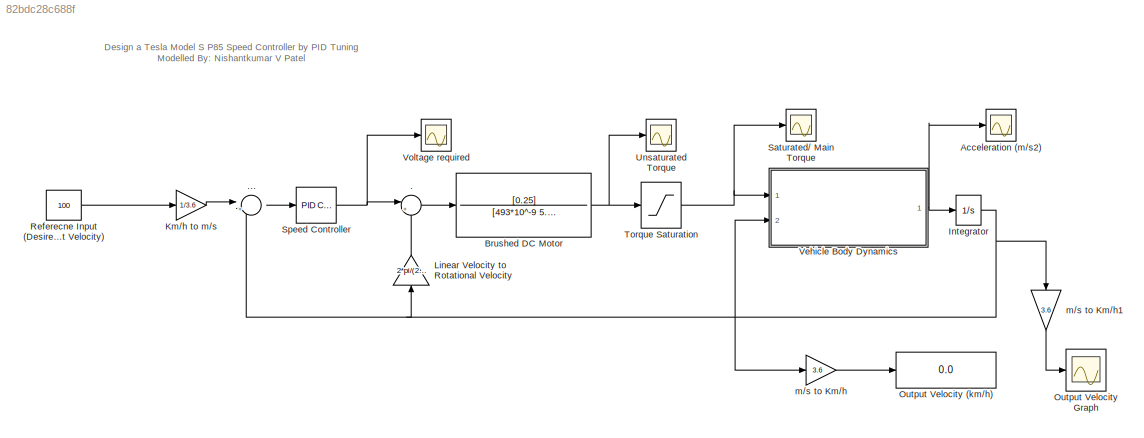
MODEL slx_82bdc28c688f
KIND model
CONFIG AbsTol = auto
CONFIG EnableMultiTasking = off
CONFIG FixedStep = auto
CONFIG MaxStep = auto
CONFIG MinStep = auto
CONFIG RelTol = 1e-3
CONFIG SampleTimeConstraint = Unconstrained
CONFIG SolverName = VariableStepAuto
CONFIG StartTime = 0.0
CONFIG StopTime = 60
BLOCK [Sum] .
  Inputs = |+-
  Ports = [2, 1]
BLOCK [Sum] ...
  Inputs = |+-
  Ports = [2, 1]
BLOCK [Scope] Acceleration (m//s2)
  Floating = off
  NumInputPorts = 1
  Ports = [1]
  ScopeSpecificationString = Simulink.scopes.TimeScopeBlockCfg('CurrentConfiguration', extmgr.ConfigurationSet(extmgr.Configuration('Core','General UI',true),extmgr.Configuration('Core','Source UI',true),extmgr.Configuration('Sources','WiredSimulink',true,'DataLoggingVariableName','ScopeData1'),extmgr.Configuration('Visuals','Time Domain',true,'SerializedDisplays',{struct('MinYLimReal','-1.16766','MaxYLimReal','7.35028','YLab...<+1378ch>
BLOCK [TransferFcn] Brushed DC Motor
  Denominator = [493*10^-9 5.3*10^-3]
  Numerator = [0.25]
BLOCK [Integrator] Integrator
  Ports = [1, 1]
BLOCK [Gain] Km//h to m//s
  Gain = 1/3.6
BLOCK [Gain] Linear Velocity to Rotational Velocity 
  Gain = 2*pi/(2*pi*0.24)*9.73*0.12
  NameLocation = right
BLOCK [Display] Output Velocity (km//h)
  Decimation = 1
  Ports = [1]
BLOCK [Scope] Output Velocity Graph
  Floating = off
  NumInputPorts = 1
  Ports = [1]
  ScopeSpecificationString = Simulink.scopes.TimeScopeBlockCfg('CurrentConfiguration', extmgr.ConfigurationSet(extmgr.Configuration('Core','General UI',true),extmgr.Configuration('Core','Source UI',true),extmgr.Configuration('Sources','WiredSimulink',true,'DataLoggingVariableName','ScopeData2'),extmgr.Configuration('Visuals','Time Domain',true,'SerializedDisplays',{struct('MinYLimReal','-12.50001','MaxYLimReal','112.50011','Y...<+1695ch>
BLOCK [Constant] Referecne Input (Desired Input Velocity)
  Value = 100
BLOCK [Scope] Saturated// Main Torque
  Floating = off
  NumInputPorts = 1
  Ports = [1]
  ScopeSpecificationString = Simulink.scopes.TimeScopeBlockCfg('CurrentConfiguration', extmgr.ConfigurationSet(extmgr.Configuration('Core','General UI',true),extmgr.Configuration('Core','Source UI',true),extmgr.Configuration('Sources','WiredSimulink',true,'DataLoggingVariableName','ScopeData3'),extmgr.Configuration('Visuals','Time Domain',true,'SerializedDisplays',{struct('MinYLimReal','-75.00000','MaxYLimReal','675.00000','Y...<+1384ch>
BLOCK [Reference] Speed Controller  REF=slpidlib/PID Controller
  Ports = [1, 1]
  SourceBlock = slpidlib/PID Controller
  SourceProductBaseCode = SL
  SourceType = PID 1dof
BLOCK [Saturate] Torque Saturation
  LowerLimit = 0
  UpperLimit = 600
BLOCK [Scope] Unsaturated Torque
  Floating = off
  NumInputPorts = 1
  Ports = [1]
  ScopeSpecificationString = Simulink.scopes.TimeScopeBlockCfg('CurrentConfiguration', extmgr.ConfigurationSet(extmgr.Configuration('Core','General UI',true),extmgr.Configuration('Core','Source UI',true),extmgr.Configuration('Sources','WiredSimulink',true,'DataLoggingVariableName','ScopeData1'),extmgr.Configuration('Visuals','Time Domain',true,'SerializedDisplays',{struct('MinYLimReal','-2039.94525','MaxYLimReal','18359.50728...<+1424ch>
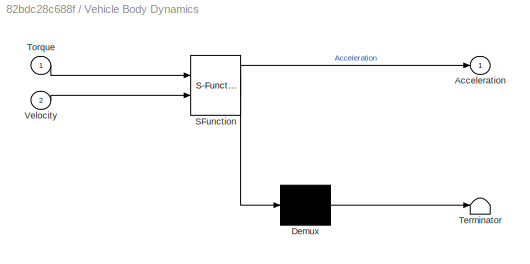
BLOCK [SubSystem] Vehicle Body Dynamics
  ErrorFcn = Stateflow.Translate.translate
  PermitHierarchicalResolution = ExplicitOnly
  Ports = [2, 1]
  RequestExecContextInheritance = off
  SFBlockType = MATLAB Function
  TreatAsAtomicUnit = on
BLOCK [Demux] Vehicle Body Dynamics/ Demux 
  Outputs = 1
  Ports = [1, 1]
BLOCK [S-Function] Vehicle Body Dynamics/ SFunction 
  EnableBusSupport = on
  FunctionName = sf_sfun
  PortCounts = [2 2]
  Ports = [2, 2]
  SFcnIsStateOwnerBlock = off
  SFunctionDeploymentMode = off
  Tag = Stateflow S-Function 2
BLOCK [Terminator] Vehicle Body Dynamics/ Terminator 
BLOCK [Outport] Vehicle Body Dynamics/Acceleration
BLOCK [Inport] Vehicle Body Dynamics/Torque
BLOCK [Inport] Vehicle Body Dynamics/Velocity
  Port = 2
BLOCK [Scope] Voltage required
  Floating = off
  NumInputPorts = 1
  Ports = [1]
  ScopeSpecificationString = Simulink.scopes.TimeScopeBlockCfg('CurrentConfiguration', extmgr.ConfigurationSet(extmgr.Configuration('Core','General UI',true),extmgr.Configuration('Core','Source UI',true),extmgr.Configuration('Sources','WiredSimulink',true),extmgr.Configuration('Visuals','Time Domain',true,'SerializedDisplays',{struct('MinYLimReal','108.62168','MaxYLimReal','372.37537','YLabelReal','','MinYLimMag','108.62168',...<+1350ch>
BLOCK [Gain] m//s to Km//h
  Gain = 3.6
BLOCK [Gain] m//s to Km//h1
  Gain = 3.6
  NameLocation = right
ANNOTATION (root): Design a Tesla Model S P85 Speed Controller by PID Tuning Modelled By: Nishantkumar V Patel
LINE ...:1 -> Speed Controller:1
LINE .:1 -> Brushed DC Motor:1
NET Brushed DC Motor:1 -> Torque Saturation:1, Unsaturated Torque:1
NET Integrator:1 -> ...:2, Linear Velocity to Rotational Velocity :1, Vehicle Body Dynamics:2, m//s to Km//h1:1, m//s to Km//h:1
LINE Km//h to m//s:1 -> ...:1
LINE Linear Velocity to Rotational Velocity :1 -> .:2
LINE Referecne Input (Desired Input Velocity):1 -> Km//h to m//s:1
NET Speed Controller:1 -> .:1, Voltage required:1
NET Torque Saturation:1 -> Saturated// Main Torque:1, Vehicle Body Dynamics:1
NET Vehicle Body Dynamics:1 -> Acceleration (m//s2):1, Integrator:1
LINE m//s to Km//h1:1 -> Output Velocity Graph:1
LINE m//s to Km//h:1 -> Output Velocity (km//h):1
note: NET lines group one-source signal fan-out (src -> all destinations, sorted); 1:1 wires keep LINE
CHART Vehicle Body Dynamics states=1 transitions=1
  STATE_LABEL 'eML_blk_kernel()'
  STATE_LABEL 'SCRIPT:\nfunction Acceleration = fcn(Torque, Velocity)\nAcceleration=(0.6*40.54*Torque-427.7-0.3381*Velocity^2)/2180;\n'
CHART  states=0 transitions=0
